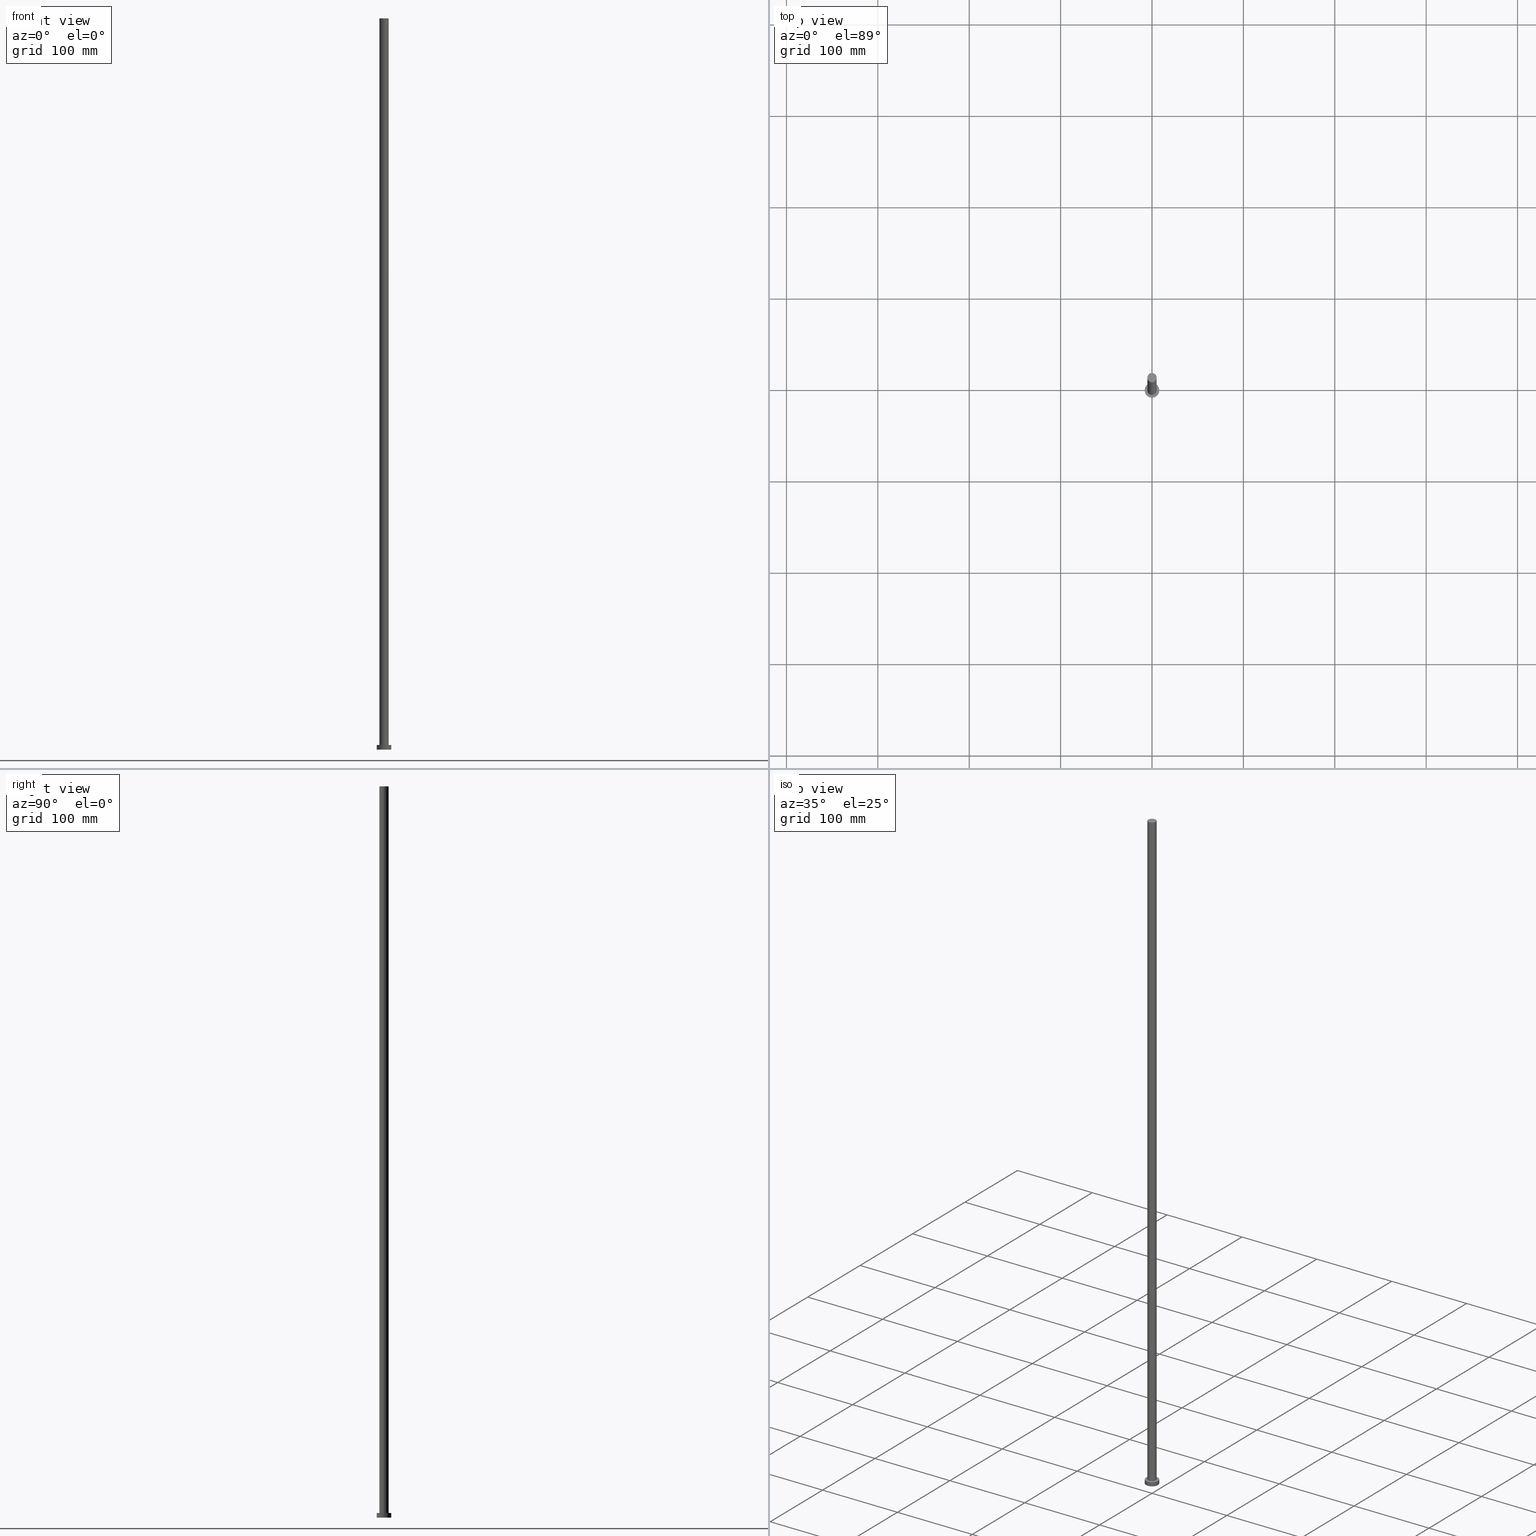
[diagram: canonical four-view strip — front | top / right | iso, engineering-drawing reading convention]
A machine part, canonical four-view strip (front | top / right | iso — engineering-drawing reading convention). The complete STEP part file that produces these views, byte-faithful:
ISO-10303-21;
HEADER;
FILE_DESCRIPTION (( 'STEP AP203' ),
    '1' );
FILE_NAME ('784a.STEP',
    '2023-02-12T11:17:47',
    ( '' ),
    ( '' ),
    'SwSTEP 2.0',
    'SolidWorks 2019',
    '' );
FILE_SCHEMA (( 'CONFIG_CONTROL_DESIGN' ));
ENDSEC;

DATA;
#1 = CARTESIAN_POINT ( 'NONE',  ( 8.000000000000000000, 9.797174393178825657E-16, 0.000000000000000000 ) ) ;
#2 = ORIENTED_EDGE ( 'NONE', *, *, #84, .F. ) ;
#3 = APPROVAL_DATE_TIME ( #242, #103 ) ;
#4 = DATE_TIME_ROLE ( 'creation_date' ) ;
#5 = PERSON_AND_ORGANIZATION ( #255, #78 ) ;
#6 = APPROVAL_DATE_TIME ( #125, #22 ) ;
#7 = PRODUCT_DEFINITION ( 'NEZN�M�', '', #19, #114 ) ;
#8 = AXIS2_PLACEMENT_3D ( 'NONE', #193, #58, #211 ) ;
#9 = DIRECTION ( 'NONE',  ( 0.000000000000000000, 0.000000000000000000, 1.000000000000000000 ) ) ;
#10 = ORIENTED_EDGE ( 'NONE', *, *, #76, .F. ) ;
#11 = ADVANCED_FACE ( 'NONE', ( #71 ), #32, .T. ) ;
#12 = DIRECTION ( 'NONE',  ( 1.000000000000000000, 0.000000000000000000, -0.000000000000000000 ) ) ;
#13 = CARTESIAN_POINT ( 'NONE',  ( 8.000000000000000000, 9.797174393178825657E-16, 5.000000000000000000 ) ) ;
#14 = VECTOR ( 'NONE', #69, 1000.000000000000000 ) ;
#15 = CARTESIAN_POINT ( 'NONE',  ( 5.100000000000001421, 6.245698675651502811E-16, 800.0000000000000000 ) ) ;
#16 = CARTESIAN_POINT ( 'NONE',  ( -5.100000000000001421, 0.000000000000000000, 800.0000000000000000 ) ) ;
#17 = PRODUCT ( '784a', '784a', '', ( #218 ) ) ;
#18 = CYLINDRICAL_SURFACE ( 'NONE', #184, 5.100000000000001421 ) ;
#19 = PRODUCT_DEFINITION_FORMATION_WITH_SPECIFIED_SOURCE ( 'LIBOVOLN�', '', #17, .NOT_KNOWN. ) ;
#20 = DATE_AND_TIME ( #106, #217 ) ;
#21 = MANIFOLD_SOLID_BREP ( 'P�idat vysunut�m3', #104 ) ;
#22 = APPROVAL ( #176, 'NEUR�EN�' ) ;
#23 = AXIS2_PLACEMENT_3D ( 'NONE', #233, #119, #238 ) ;
#24 = PERSON_AND_ORGANIZATION_ROLE ( 'creator' ) ;
#25 = ORIENTED_EDGE ( 'NONE', *, *, #216, .T. ) ;
#26 = PERSON_AND_ORGANIZATION ( #255, #78 ) ;
#27 = EDGE_LOOP ( 'NONE', ( #2, #214, #146, #138 ) ) ;
#28 = LOCAL_TIME ( 12, 17, 47.00000000000000000, #61 ) ;
#29 = FACE_OUTER_BOUND ( 'NONE', #170, .T. ) ;
#30 = APPROVAL ( #62, 'NEUR�EN�' ) ;
#31 = DIRECTION ( 'NONE',  ( -0.000000000000000000, -0.000000000000000000, -1.000000000000000000 ) ) ;
#32 = PLANE ( 'NONE',  #60 ) ;
#33 = AXIS2_PLACEMENT_3D ( 'NONE', #236, #101, #200 ) ;
#34 = FACE_OUTER_BOUND ( 'NONE', #179, .T. ) ;
#35 = CARTESIAN_POINT ( 'NONE',  ( 0.000000000000000000, 0.000000000000000000, 800.0000000000000000 ) ) ;
#36 = PRODUCT_DEFINITION_SHAPE ( 'NONE', 'NONE',  #7 ) ;
#37 = AXIS2_PLACEMENT_3D ( 'NONE', #228, #54, #129 ) ;
#38 = ADVANCED_FACE ( 'NONE', ( #207 ), #167, .T. ) ;
#39 = PLANE ( 'NONE',  #235 ) ;
#40 = CARTESIAN_POINT ( 'NONE',  ( 0.000000000000000000, 0.000000000000000000, 0.000000000000000000 ) ) ;
#41 = ORIENTED_EDGE ( 'NONE', *, *, #87, .T. ) ;
#42 = VERTEX_POINT ( 'NONE', #107 ) ;
#43 = LOCAL_TIME ( 12, 17, 47.00000000000000000, #82 ) ;
#44 = APPROVAL_DATE_TIME ( #20, #30 ) ;
#45 = EDGE_CURVE ( 'NONE', #254, #205, #199, .T. ) ;
#46 = PERSON_AND_ORGANIZATION ( #255, #78 ) ;
#47 = AXIS2_PLACEMENT_3D ( 'NONE', #66, #9, #88 ) ;
#48 = PERSON_AND_ORGANIZATION_ROLE ( 'design_supplier' ) ;
#49 = FACE_BOUND ( 'NONE', #112, .T. ) ;
#50 = AXIS2_PLACEMENT_3D ( 'NONE', #150, #229, #127 ) ;
#51 = CARTESIAN_POINT ( 'NONE',  ( 0.000000000000000000, 0.000000000000000000, 5.000000000000000000 ) ) ;
#52 = ADVANCED_FACE ( 'NONE', ( #49, #29 ), #169, .T. ) ;
#53 = DIRECTION ( 'NONE',  ( 1.000000000000000000, 0.000000000000000000, 0.000000000000000000 ) ) ;
#54 = DIRECTION ( 'NONE',  ( 0.000000000000000000, 0.000000000000000000, 1.000000000000000000 ) ) ;
#55 = CIRCLE ( 'NONE', #8, 5.100000000000001421 ) ;
#56 = CARTESIAN_POINT ( 'NONE',  ( 5.100000000000001421, 6.245698675651502811E-16, 5.000000000000000000 ) ) ;
#57 = ADVANCED_FACE ( 'NONE', ( #226 ), #247, .T. ) ;
#58 = DIRECTION ( 'NONE',  ( 0.000000000000000000, 0.000000000000000000, 1.000000000000000000 ) ) ;
#59 = ORIENTED_EDGE ( 'NONE', *, *, #232, .T. ) ;
#60 = AXIS2_PLACEMENT_3D ( 'NONE', #109, #223, #12 ) ;
#61 = COORDINATED_UNIVERSAL_TIME_OFFSET ( 1, 0, .AHEAD. ) ;
#62 = APPROVAL_STATUS ( 'not_yet_approved' ) ;
#63 = PERSON_AND_ORGANIZATION_ROLE ( 'creator' ) ;
#64 = ADVANCED_BREP_SHAPE_REPRESENTATION ( '784a', ( #21, #33 ), #159 ) ;
#65 = DIRECTION ( 'NONE',  ( 0.000000000000000000, 0.000000000000000000, 1.000000000000000000 ) ) ;
#66 = CARTESIAN_POINT ( 'NONE',  ( 0.000000000000000000, 0.000000000000000000, 5.000000000000000000 ) ) ;
#67 = CC_DESIGN_PERSON_AND_ORGANIZATION_ASSIGNMENT ( #239, #24, ( #19 ) ) ;
#68 = AXIS2_PLACEMENT_3D ( 'NONE', #40, #171, #174 ) ;
#69 = DIRECTION ( 'NONE',  ( -0.000000000000000000, -0.000000000000000000, -1.000000000000000000 ) ) ;
#70 = CARTESIAN_POINT ( 'NONE',  ( -8.000000000000000000, 0.000000000000000000, 0.000000000000000000 ) ) ;
#71 = FACE_OUTER_BOUND ( 'NONE', #77, .T. ) ;
#72 = APPROVAL_PERSON_ORGANIZATION ( #241, #30, #219 ) ;
#73 = UNCERTAINTY_MEASURE_WITH_UNIT (LENGTH_MEASURE( 1.000000000000000082E-05 ), #132, 'distance_accuracy_value', 'NONE');
#74 = CYLINDRICAL_SURFACE ( 'NONE', #151, 8.000000000000000000 ) ;
#75 = VERTEX_POINT ( 'NONE', #70 ) ;
#76 = EDGE_CURVE ( 'NONE', #215, #237, #89, .T. ) ;
#77 = EDGE_LOOP ( 'NONE', ( #59, #92 ) ) ;
#78 = ORGANIZATION ( 'NEUR�EN�', 'NEUR�EN�', '' ) ;
#79 = CARTESIAN_POINT ( 'NONE',  ( -8.000000000000000000, 0.000000000000000000, 5.000000000000000000 ) ) ;
#80 = CARTESIAN_POINT ( 'NONE',  ( -5.100000000000001421, 0.000000000000000000, 5.000000000000000000 ) ) ;
#81 = EDGE_LOOP ( 'NONE', ( #186, #118 ) ) ;
#82 = COORDINATED_UNIVERSAL_TIME_OFFSET ( 1, 0, .AHEAD. ) ;
#83 = AXIS2_PLACEMENT_3D ( 'NONE', #35, #156, #173 ) ;
#84 = EDGE_CURVE ( 'NONE', #165, #254, #148, .T. ) ;
#85 = DATE_AND_TIME ( #222, #130 ) ;
#86 = EDGE_LOOP ( 'NONE', ( #157, #120, #194, #245 ) ) ;
#87 = EDGE_CURVE ( 'NONE', #215, #111, #190, .T. ) ;
#88 = DIRECTION ( 'NONE',  ( 1.000000000000000000, 0.000000000000000000, -0.000000000000000000 ) ) ;
#89 = LINE ( 'NONE', #149, #14 ) ;
#90 = AXIS2_PLACEMENT_3D ( 'NONE', #91, #65, #53 ) ;
#91 = CARTESIAN_POINT ( 'NONE',  ( 0.000000000000000000, 0.000000000000000000, 5.000000000000000000 ) ) ;
#92 = ORIENTED_EDGE ( 'NONE', *, *, #145, .T. ) ;
#93 = DIRECTION ( 'NONE',  ( 0.000000000000000000, 0.000000000000000000, 1.000000000000000000 ) ) ;
#94 = APPROVAL_PERSON_ORGANIZATION ( #46, #22, #196 ) ;
#95 = DIRECTION ( 'NONE',  ( 1.000000000000000000, 0.000000000000000000, -0.000000000000000000 ) ) ;
#96 = DIRECTION ( 'NONE',  ( 1.000000000000000000, 0.000000000000000000, 0.000000000000000000 ) ) ;
#97 = CC_DESIGN_PERSON_AND_ORGANIZATION_ASSIGNMENT ( #197, #48, ( #19 ) ) ;
#98 = CIRCLE ( 'NONE', #83, 5.100000000000001421 ) ;
#99 = CARTESIAN_POINT ( 'NONE',  ( -8.000000000000000000, 0.000000000000000000, 5.000000000000000000 ) ) ;
#100 = EDGE_CURVE ( 'NONE', #75, #237, #210, .T. ) ;
#101 = DIRECTION ( 'NONE',  ( 0.000000000000000000, 0.000000000000000000, 1.000000000000000000 ) ) ;
#102 = PERSON_AND_ORGANIZATION ( #255, #78 ) ;
#103 = APPROVAL ( #162, 'NEUR�EN�' ) ;
#104 = CLOSED_SHELL ( 'NONE', ( #38, #57, #182, #52, #227, #206, #11 ) ) ;
#105 = COORDINATED_UNIVERSAL_TIME_OFFSET ( 1, 0, .AHEAD. ) ;
#106 = CALENDAR_DATE ( 2023, 12, 2 ) ;
#107 = CARTESIAN_POINT ( 'NONE',  ( -5.100000000000001421, 0.000000000000000000, 800.0000000000000000 ) ) ;
#108 = CC_DESIGN_APPROVAL ( #30, ( #121 ) ) ;
#109 = CARTESIAN_POINT ( 'NONE',  ( 0.000000000000000000, 0.000000000000000000, 800.0000000000000000 ) ) ;
#110 = DIRECTION ( 'NONE',  ( -1.000000000000000000, 0.000000000000000000, 0.000000000000000000 ) ) ;
#111 = VERTEX_POINT ( 'NONE', #79 ) ;
#112 = EDGE_LOOP ( 'NONE', ( #246, #248 ) ) ;
#113 = LINE ( 'NONE', #16, #221 ) ;
#114 = DESIGN_CONTEXT ( 'detailed design', #208, 'design' ) ;
#115 =( NAMED_UNIT ( * ) PLANE_ANGLE_UNIT ( ) SI_UNIT ( $, .RADIAN. ) );
#116 = DIRECTION ( 'NONE',  ( -1.000000000000000000, 0.000000000000000000, 0.000000000000000000 ) ) ;
#117 = DIRECTION ( 'NONE',  ( -1.000000000000000000, 0.000000000000000000, 0.000000000000000000 ) ) ;
#118 = ORIENTED_EDGE ( 'NONE', *, *, #143, .F. ) ;
#119 = DIRECTION ( 'NONE',  ( 0.000000000000000000, 0.000000000000000000, 1.000000000000000000 ) ) ;
#120 = ORIENTED_EDGE ( 'NONE', *, *, #76, .T. ) ;
#121 = SECURITY_CLASSIFICATION ( '', '', #126 ) ;
#122 = PERSON_AND_ORGANIZATION ( #255, #78 ) ;
#123 = EDGE_LOOP ( 'NONE', ( #253, #203, #234, #154 ) ) ;
#124 = DATE_TIME_ROLE ( 'classification_date' ) ;
#125 = DATE_AND_TIME ( #141, #28 ) ;
#126 = SECURITY_CLASSIFICATION_LEVEL ( 'unclassified' ) ;
#127 = DIRECTION ( 'NONE',  ( -1.000000000000000000, 0.000000000000000000, 0.000000000000000000 ) ) ;
#128 = CARTESIAN_POINT ( 'NONE',  ( 5.100000000000001421, 6.245698675651502811E-16, 800.0000000000000000 ) ) ;
#129 = DIRECTION ( 'NONE',  ( 1.000000000000000000, 0.000000000000000000, 0.000000000000000000 ) ) ;
#130 = LOCAL_TIME ( 12, 17, 47.00000000000000000, #202 ) ;
#131 = DIRECTION ( 'NONE',  ( 0.000000000000000000, 0.000000000000000000, 1.000000000000000000 ) ) ;
#132 =( LENGTH_UNIT ( ) NAMED_UNIT ( * ) SI_UNIT ( .MILLI., .METRE. ) );
#133 = CARTESIAN_POINT ( 'NONE',  ( 0.000000000000000000, 0.000000000000000000, 5.000000000000000000 ) ) ;
#134 = CIRCLE ( 'NONE', #23, 8.000000000000000000 ) ;
#135 = APPLICATION_PROTOCOL_DEFINITION ( 'international standard', 'config_control_design', 1994, #142 ) ;
#136 = CC_DESIGN_PERSON_AND_ORGANIZATION_ASSIGNMENT ( #26, #160, ( #121 ) ) ;
#137 = CARTESIAN_POINT ( 'NONE',  ( 0.000000000000000000, 0.000000000000000000, 800.0000000000000000 ) ) ;
#138 = ORIENTED_EDGE ( 'NONE', *, *, #224, .T. ) ;
#139 = AXIS2_PLACEMENT_3D ( 'NONE', #133, #155, #153 ) ;
#140 = CALENDAR_DATE ( 2023, 12, 2 ) ;
#141 = CALENDAR_DATE ( 2023, 12, 2 ) ;
#142 = APPLICATION_CONTEXT ( 'configuration controlled 3d designs of mechanical parts and assemblies' ) ;
#143 = EDGE_CURVE ( 'NONE', #237, #75, #134, .T. ) ;
#144 = APPLICATION_PROTOCOL_DEFINITION ( 'international standard', 'config_control_design', 1994, #208 ) ;
#145 = EDGE_CURVE ( 'NONE', #165, #42, #55, .T. ) ;
#146 = ORIENTED_EDGE ( 'NONE', *, *, #201, .T. ) ;
#147 = CC_DESIGN_DATE_AND_TIME_ASSIGNMENT ( #240, #124, ( #121 ) ) ;
#148 = LINE ( 'NONE', #128, #204 ) ;
#149 = CARTESIAN_POINT ( 'NONE',  ( 8.000000000000000000, 9.797174393178825657E-16, 5.000000000000000000 ) ) ;
#150 = CARTESIAN_POINT ( 'NONE',  ( 0.000000000000000000, 0.000000000000000000, 800.0000000000000000 ) ) ;
#151 = AXIS2_PLACEMENT_3D ( 'NONE', #213, #249, #117 ) ;
#152 = DIRECTION ( 'NONE',  ( -0.000000000000000000, -0.000000000000000000, -1.000000000000000000 ) ) ;
#153 = DIRECTION ( 'NONE',  ( 1.000000000000000000, 0.000000000000000000, 0.000000000000000000 ) ) ;
#154 = ORIENTED_EDGE ( 'NONE', *, *, #201, .F. ) ;
#155 = DIRECTION ( 'NONE',  ( 0.000000000000000000, 0.000000000000000000, 1.000000000000000000 ) ) ;
#156 = DIRECTION ( 'NONE',  ( 0.000000000000000000, 0.000000000000000000, 1.000000000000000000 ) ) ;
#157 = ORIENTED_EDGE ( 'NONE', *, *, #87, .F. ) ;
#158 = AXIS2_PLACEMENT_3D ( 'NONE', #51, #31, #110 ) ;
#159 =( GEOMETRIC_REPRESENTATION_CONTEXT ( 3 ) GLOBAL_UNCERTAINTY_ASSIGNED_CONTEXT ( ( #73 ) ) GLOBAL_UNIT_ASSIGNED_CONTEXT ( ( #132, #115, #191 ) ) REPRESENTATION_CONTEXT ( 'NONE', 'WORKASPACE' ) );
#160 = PERSON_AND_ORGANIZATION_ROLE ( 'classification_officer' ) ;
#161 = CC_DESIGN_DATE_AND_TIME_ASSIGNMENT ( #85, #4, ( #7 ) ) ;
#162 = APPROVAL_STATUS ( 'not_yet_approved' ) ;
#163 = APPROVAL_ROLE ( '' ) ;
#164 = CC_DESIGN_APPROVAL ( #22, ( #19 ) ) ;
#165 = VERTEX_POINT ( 'NONE', #15 ) ;
#166 = ORIENTED_EDGE ( 'NONE', *, *, #252, .F. ) ;
#167 = CYLINDRICAL_SURFACE ( 'NONE', #50, 5.100000000000001421 ) ;
#168 = AXIS2_PLACEMENT_3D ( 'NONE', #230, #131, #96 ) ;
#169 = PLANE ( 'NONE',  #47 ) ;
#170 = EDGE_LOOP ( 'NONE', ( #192, #41 ) ) ;
#171 = DIRECTION ( 'NONE',  ( 0.000000000000000000, 0.000000000000000000, 1.000000000000000000 ) ) ;
#172 = LOCAL_TIME ( 12, 17, 47.00000000000000000, #105 ) ;
#173 = DIRECTION ( 'NONE',  ( 1.000000000000000000, 0.000000000000000000, 0.000000000000000000 ) ) ;
#174 = DIRECTION ( 'NONE',  ( 1.000000000000000000, 0.000000000000000000, 0.000000000000000000 ) ) ;
#175 = FACE_OUTER_BOUND ( 'NONE', #81, .T. ) ;
#176 = APPROVAL_STATUS ( 'not_yet_approved' ) ;
#177 = CC_DESIGN_PERSON_AND_ORGANIZATION_ASSIGNMENT ( #122, #63, ( #7 ) ) ;
#178 = PERSON_AND_ORGANIZATION_ROLE ( 'design_owner' ) ;
#179 = EDGE_LOOP ( 'NONE', ( #10, #166, #25, #244 ) ) ;
#180 = CIRCLE ( 'NONE', #168, 5.100000000000001421 ) ;
#181 = CALENDAR_DATE ( 2023, 12, 2 ) ;
#182 = ADVANCED_FACE ( 'NONE', ( #34 ), #74, .T. ) ;
#183 = SHAPE_DEFINITION_REPRESENTATION ( #36, #64 ) ;
#184 = AXIS2_PLACEMENT_3D ( 'NONE', #137, #188, #116 ) ;
#185 = CC_DESIGN_PERSON_AND_ORGANIZATION_ASSIGNMENT ( #5, #178, ( #17 ) ) ;
#186 = ORIENTED_EDGE ( 'NONE', *, *, #100, .F. ) ;
#187 = CIRCLE ( 'NONE', #139, 8.000000000000000000 ) ;
#188 = DIRECTION ( 'NONE',  ( -0.000000000000000000, -0.000000000000000000, -1.000000000000000000 ) ) ;
#189 = FACE_OUTER_BOUND ( 'NONE', #27, .T. ) ;
#190 = CIRCLE ( 'NONE', #37, 8.000000000000000000 ) ;
#191 =( NAMED_UNIT ( * ) SI_UNIT ( $, .STERADIAN. ) SOLID_ANGLE_UNIT ( ) );
#192 = ORIENTED_EDGE ( 'NONE', *, *, #252, .T. ) ;
#193 = CARTESIAN_POINT ( 'NONE',  ( 0.000000000000000000, 0.000000000000000000, 800.0000000000000000 ) ) ;
#194 = ORIENTED_EDGE ( 'NONE', *, *, #143, .T. ) ;
#195 = APPROVAL_PERSON_ORGANIZATION ( #102, #103, #163 ) ;
#196 = APPROVAL_ROLE ( '' ) ;
#197 = PERSON_AND_ORGANIZATION ( #255, #78 ) ;
#198 = COORDINATED_UNIVERSAL_TIME_OFFSET ( 1, 0, .AHEAD. ) ;
#199 = CIRCLE ( 'NONE', #90, 5.100000000000001421 ) ;
#200 = DIRECTION ( 'NONE',  ( 1.000000000000000000, 0.000000000000000000, 0.000000000000000000 ) ) ;
#201 = EDGE_CURVE ( 'NONE', #42, #205, #113, .T. ) ;
#202 = COORDINATED_UNIVERSAL_TIME_OFFSET ( 1, 0, .AHEAD. ) ;
#203 = ORIENTED_EDGE ( 'NONE', *, *, #84, .T. ) ;
#204 = VECTOR ( 'NONE', #209, 1000.000000000000000 ) ;
#205 = VERTEX_POINT ( 'NONE', #80 ) ;
#206 = ADVANCED_FACE ( 'NONE', ( #189 ), #18, .T. ) ;
#207 = FACE_OUTER_BOUND ( 'NONE', #123, .T. ) ;
#208 = APPLICATION_CONTEXT ( 'configuration controlled 3d designs of mechanical parts and assemblies' ) ;
#209 = DIRECTION ( 'NONE',  ( -0.000000000000000000, -0.000000000000000000, -1.000000000000000000 ) ) ;
#210 = CIRCLE ( 'NONE', #68, 8.000000000000000000 ) ;
#211 = DIRECTION ( 'NONE',  ( 1.000000000000000000, 0.000000000000000000, 0.000000000000000000 ) ) ;
#212 = LINE ( 'NONE', #99, #225 ) ;
#213 = CARTESIAN_POINT ( 'NONE',  ( 0.000000000000000000, 0.000000000000000000, 5.000000000000000000 ) ) ;
#214 = ORIENTED_EDGE ( 'NONE', *, *, #232, .F. ) ;
#215 = VERTEX_POINT ( 'NONE', #13 ) ;
#216 = EDGE_CURVE ( 'NONE', #111, #75, #212, .T. ) ;
#217 = LOCAL_TIME ( 12, 17, 47.00000000000000000, #198 ) ;
#218 = MECHANICAL_CONTEXT ( 'NONE', #142, 'mechanical' ) ;
#219 = APPROVAL_ROLE ( '' ) ;
#220 = PRODUCT_RELATED_PRODUCT_CATEGORY ( 'detail', '', ( #17 ) ) ;
#221 = VECTOR ( 'NONE', #251, 1000.000000000000000 ) ;
#222 = CALENDAR_DATE ( 2023, 12, 2 ) ;
#223 = DIRECTION ( 'NONE',  ( 0.000000000000000000, 0.000000000000000000, 1.000000000000000000 ) ) ;
#224 = EDGE_CURVE ( 'NONE', #205, #254, #180, .T. ) ;
#225 = VECTOR ( 'NONE', #152, 1000.000000000000000 ) ;
#226 = FACE_OUTER_BOUND ( 'NONE', #86, .T. ) ;
#227 = ADVANCED_FACE ( 'NONE', ( #175 ), #39, .F. ) ;
#228 = CARTESIAN_POINT ( 'NONE',  ( 0.000000000000000000, 0.000000000000000000, 5.000000000000000000 ) ) ;
#229 = DIRECTION ( 'NONE',  ( -0.000000000000000000, -0.000000000000000000, -1.000000000000000000 ) ) ;
#230 = CARTESIAN_POINT ( 'NONE',  ( 0.000000000000000000, 0.000000000000000000, 5.000000000000000000 ) ) ;
#231 = CARTESIAN_POINT ( 'NONE',  ( 0.000000000000000000, 0.000000000000000000, 0.000000000000000000 ) ) ;
#232 = EDGE_CURVE ( 'NONE', #42, #165, #98, .T. ) ;
#233 = CARTESIAN_POINT ( 'NONE',  ( 0.000000000000000000, 0.000000000000000000, 0.000000000000000000 ) ) ;
#234 = ORIENTED_EDGE ( 'NONE', *, *, #45, .T. ) ;
#235 = AXIS2_PLACEMENT_3D ( 'NONE', #231, #93, #95 ) ;
#236 = CARTESIAN_POINT ( 'NONE',  ( 0.000000000000000000, 0.000000000000000000, 0.000000000000000000 ) ) ;
#237 = VERTEX_POINT ( 'NONE', #1 ) ;
#238 = DIRECTION ( 'NONE',  ( 1.000000000000000000, 0.000000000000000000, 0.000000000000000000 ) ) ;
#239 = PERSON_AND_ORGANIZATION ( #255, #78 ) ;
#240 = DATE_AND_TIME ( #140, #43 ) ;
#241 = PERSON_AND_ORGANIZATION ( #255, #78 ) ;
#242 = DATE_AND_TIME ( #181, #172 ) ;
#243 = CC_DESIGN_APPROVAL ( #103, ( #7 ) ) ;
#244 = ORIENTED_EDGE ( 'NONE', *, *, #100, .T. ) ;
#245 = ORIENTED_EDGE ( 'NONE', *, *, #216, .F. ) ;
#246 = ORIENTED_EDGE ( 'NONE', *, *, #224, .F. ) ;
#247 = CYLINDRICAL_SURFACE ( 'NONE', #158, 8.000000000000000000 ) ;
#248 = ORIENTED_EDGE ( 'NONE', *, *, #45, .F. ) ;
#249 = DIRECTION ( 'NONE',  ( -0.000000000000000000, -0.000000000000000000, -1.000000000000000000 ) ) ;
#250 = CC_DESIGN_SECURITY_CLASSIFICATION ( #121, ( #19 ) ) ;
#251 = DIRECTION ( 'NONE',  ( -0.000000000000000000, -0.000000000000000000, -1.000000000000000000 ) ) ;
#252 = EDGE_CURVE ( 'NONE', #111, #215, #187, .T. ) ;
#253 = ORIENTED_EDGE ( 'NONE', *, *, #145, .F. ) ;
#254 = VERTEX_POINT ( 'NONE', #56 ) ;
#255 = PERSON ( 'NEUR�EN�', 'NEUR�EN�', 'NEUR�EN�', ('NEUR�EN�'), ('NEUR�EN�'), ('NEUR�EN�') ) ;
ENDSEC;
END-ISO-10303-21;
